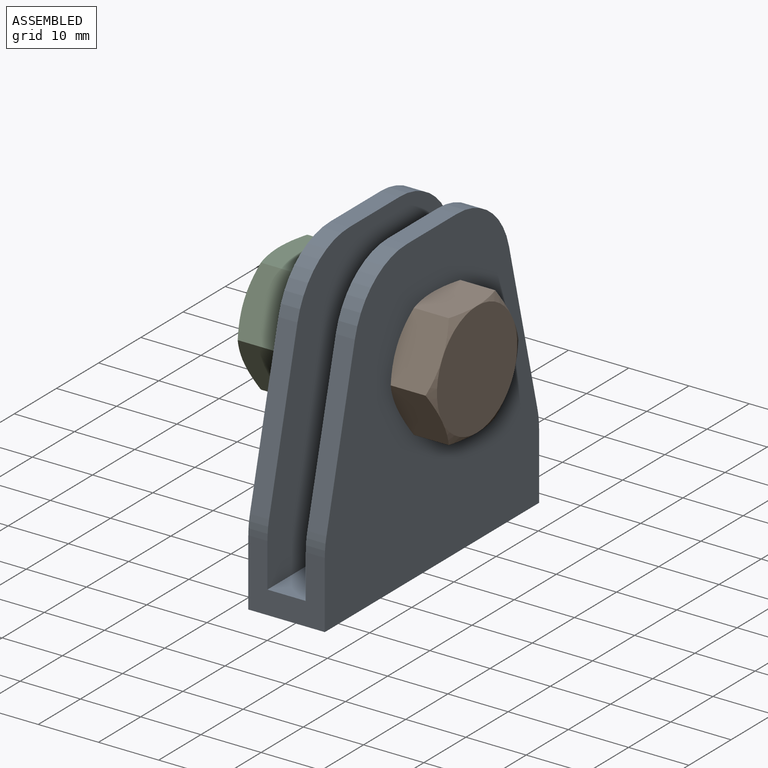
[diagram: assembled view]
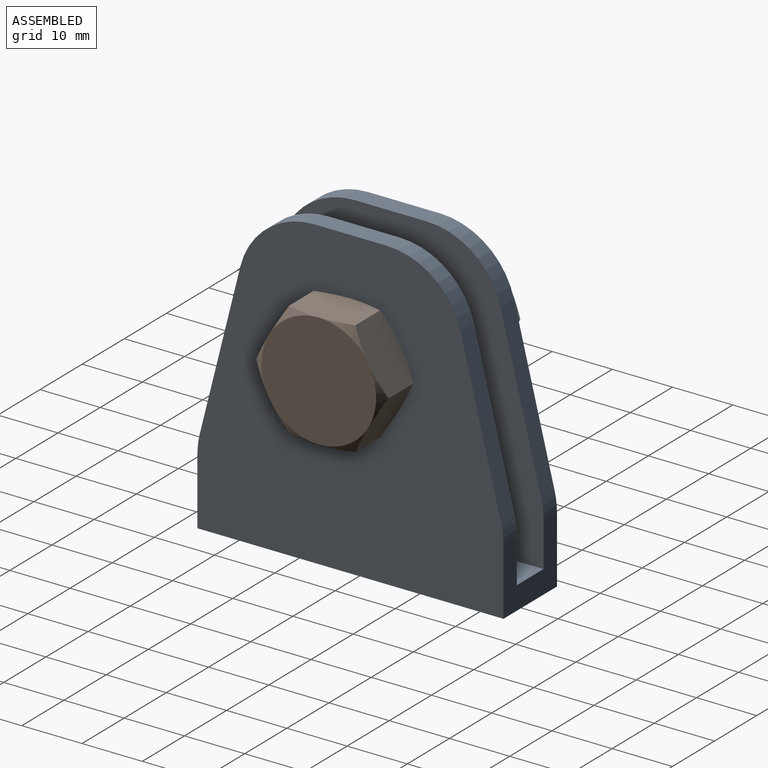
[diagram: assembled view, second angle]
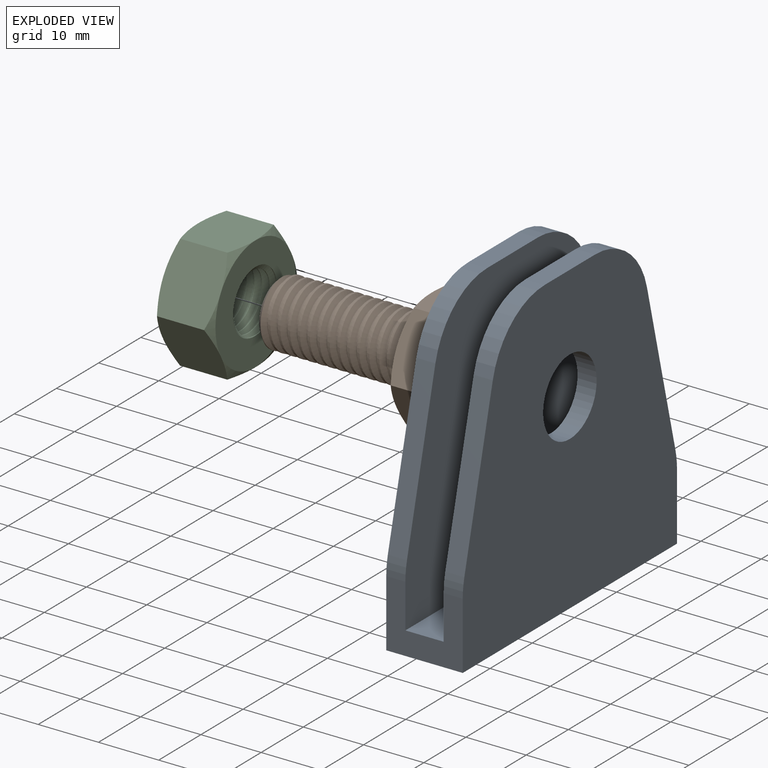
[diagram: exploded view]
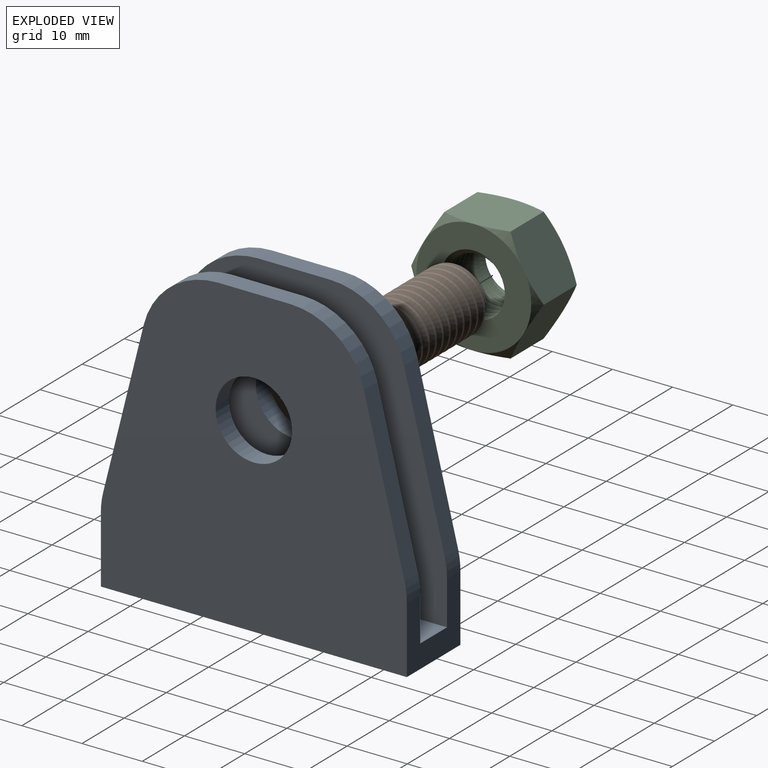
[diagram: exploded view, second angle]
ASSEMBLY  parts=3 mates=2
PART A: 24 faces, bbox 50.8x50.8x12.7 mm
  f0: plane 12.7x11.14mm, normal (0,1,0), area 95.1mm2, adj f6,f11,f12,f13,f14,f15,f16,f20
  f1: plane 26.96x6.74mm, normal (-0.24,0.97,0), area 88.2mm2, adj f11,f14,f20,f21
  f2: plane 11.92x3.18mm, normal (-1,0,0), area 37.8mm2, adj f11,f14,f21,f22
  f3: cylinder r=6.35mm len=12.7mm, axis (0,0,-1), area 126.7mm2, adj f11,f14
  f4: plane 26.96x6.74mm, normal (-0.24,-0.97,0), area 88.2mm2, adj f11,f14,f22,f23
  f5: plane 12.7x11.14mm, normal (0,-1,0), area 95.1mm2, adj f6,f11,f12,f13,f14,f15,f19,f23
  f6: plane 50.8x12.7mm, normal (1,0,0), area 645.2mm2, adj f0,f5,f11,f12
  f7: plane 26.96x6.74mm, normal (-0.24,0.97,0), area 88.2mm2, adj f12,f15,f16,f17
  f8: plane 11.92x3.18mm, normal (-1,0,0), area 37.8mm2, adj f12,f15,f17,f18
  f9: cylinder r=6.35mm len=12.7mm, axis (0,0,-1), area 126.7mm2, adj f12,f15
  f10: plane 26.96x6.74mm, normal (-0.24,-0.97,0), area 88.2mm2, adj f12,f15,f18,f19
  f11: plane 50.8x50.8mm, normal (0,0,1), area 2052.8mm2, adj f0,f1,f2,f3,f4,f5,f6,f20
  f12: plane 50.8x50.8mm, normal (0,0,-1), area 2052.8mm2, adj f0,f5,f6,f7,f8,f9,f10,f16
  f13: plane 50.8x6.35mm, normal (-1,0,0), area 322.6mm2, adj f0,f5,f14,f15
  f14: plane 50.8x46.97mm, normal (0,0,-1), area 1858.1mm2, adj f0,f1,f2,f3,f4,f5,f13,f20
  f15: plane 50.8x46.97mm, normal (0,0,1), area 1858.1mm2, adj f0,f5,f7,f8,f9,f10,f13,f16
  f16: cylinder r=12.7mm len=3.18mm, axis (0,0,-1), area 9.9mm2, adj f0,f7,f12,f15
  f17: cylinder r=12.7mm len=12.32mm, axis (0,0,-1), area 53.5mm2, adj f7,f8,f12,f15
  f18: cylinder r=12.7mm len=12.32mm, axis (0,0,-1), area 53.5mm2, adj f8,f10,f12,f15
  f19: cylinder r=12.7mm len=3.18mm, axis (0,0,-1), area 9.9mm2, adj f5,f10,f12,f15
  f20: cylinder r=12.7mm len=3.18mm, axis (0,0,-1), area 9.9mm2, adj f0,f1,f11,f14
  f21: cylinder r=12.7mm len=12.32mm, axis (0,0,-1), area 53.5mm2, adj f1,f2,f11,f14
  f22: cylinder r=12.7mm len=12.32mm, axis (0,0,-1), area 53.5mm2, adj f2,f4,f11,f14
  f23: cylinder r=12.7mm len=3.18mm, axis (0,0,-1), area 9.9mm2, adj f4,f5,f11,f14
PART B: 28 faces, bbox 22.9x22.9x34.3 mm
  f0: cylinder r=5.44mm len=24.65mm, axis (0,0,1), area 211.7mm2, adj f20,f22,f24,f25,f27
  f1: plane 9.39x9.39mm, normal (0,0,-1), area 69mm2, adj f22,f23,f25,f26
  f2: plane 11.91x8.41mm, normal (-1,0,0), area 76.1mm2, adj f3,f7,f8,f9,f10,f11
  f3: plane 10.43x8.41mm, normal (-0.5,0.87,0), area 76.1mm2, adj f2,f4,f8,f10,f12,f13
  f4: plane 10.43x8.41mm, normal (0.5,0.87,0), area 76.1mm2, adj f3,f5,f12,f13,f14,f15
  f5: plane 11.91x8.41mm, normal (1,0,0), area 76.1mm2, adj f4,f6,f14,f15,f16,f17
  f6: plane 10.43x8.41mm, normal (0.5,-0.87,0), area 76.1mm2, adj f5,f7,f16,f17,f18,f19
  f7: plane 10.43x8.41mm, normal (-0.5,-0.87,0), area 76.1mm2, adj f2,f6,f9,f11,f18,f19
  f8: cone r=13.05mm half-angle=60deg, axis (0,0,1), area 8.9mm2, adj f2,f3,f20
  f9: cone r=13.05mm half-angle=60deg, axis (0,0,1), area 8.9mm2, adj f2,f7,f20
  f10: cone r=13.05mm half-angle=60deg, axis (0,0,-1), area 8.9mm2, adj f2,f3,f21
  f11: cone r=13.05mm half-angle=60deg, axis (0,0,-1), area 8.9mm2, adj f2,f7,f21
  f12: cone r=13.05mm half-angle=60deg, axis (0,0,1), area 8.9mm2, adj f3,f4,f20
  f13: cone r=13.05mm half-angle=60deg, axis (0,0,-1), area 8.9mm2, adj f3,f4,f21
  f14: cone r=13.05mm half-angle=60deg, axis (0,0,1), area 8.9mm2, adj f4,f5,f20
  f15: cone r=13.05mm half-angle=60deg, axis (0,0,-1), area 8.9mm2, adj f4,f5,f21
  f16: cone r=13.05mm half-angle=60deg, axis (0,0,1), area 8.9mm2, adj f5,f6,f20
  f17: cone r=13.05mm half-angle=60deg, axis (0,0,-1), area 8.9mm2, adj f5,f6,f21
  f18: cone r=13.05mm half-angle=60deg, axis (0,0,1), area 8.9mm2, adj f6,f7,f20
  f19: cone r=13.05mm half-angle=60deg, axis (0,0,-1), area 8.9mm2, adj f6,f7,f21
  f20: plane 19.05x19.05mm, normal (0,0,-1), area 192.2mm2, adj f0,f8,f9,f12,f14,f16,f18
  f21: plane 19.05x19.05mm, normal (0,0,1), area 285mm2, adj f10,f11,f13,f15,f17,f19
  f22: cone r=4.69mm half-angle=45deg, axis (0,0,1), area 20.3mm2, adj f0,f1,f23,f25
  f23: plane 0.82x0.75mm, normal (0,1,0), area 0.1mm2, adj f1,f22,f26,f27
  f24: plane 1.23x0.82mm, normal (0,-1,0), area 0.6mm2, adj f0,f25,f26,f27
  f25: bspline ~25.13x12.56mm, area 439.1mm2, adj f0,f1,f22,f24,f26
  f26: cylinder r=4.61mm len=24.92mm, axis (0,0,1), area 121.6mm2, adj f1,f23,f24,f25,f27
  f27: bspline ~25.13x12.56mm, area 450mm2, adj f0,f23,f24,f26
PART C: 25 faces, bbox 22.9x22.9x11 mm
  f0: plane 19.49x19.49mm, normal (0,0,1), area 199.5mm2, adj f2,f5,f6,f8,f10,f12,f14,f22
  f1: plane 19.05x19.05mm, normal (0,0,-1), area 213.1mm2, adj f2,f3,f4,f7,f9,f11,f13
  f2: cylinder r=4.78mm len=9.57mm, axis (0,0,-1), area 65.3mm2, adj f0,f1,f21,f22,f23
  f3: cone r=15.51mm half-angle=60deg, axis (0,0,1), area 8.9mm2, adj f1,f15,f16
  f4: cone r=15.51mm half-angle=60deg, axis (0,0,1), area 8.9mm2, adj f1,f15,f20
  f5: cone r=15.51mm half-angle=60deg, axis (0,0,-1), area 8.9mm2, adj f0,f15,f16
  f6: cone r=15.51mm half-angle=60deg, axis (0,0,-1), area 8.9mm2, adj f0,f15,f20
  f7: cone r=15.51mm half-angle=60deg, axis (0,0,1), area 8.9mm2, adj f1,f16,f17
  f8: cone r=15.51mm half-angle=60deg, axis (0,0,-1), area 8.9mm2, adj f0,f16,f17
  f9: cone r=15.51mm half-angle=60deg, axis (0,0,1), area 8.9mm2, adj f1,f17,f18
  f10: cone r=15.51mm half-angle=60deg, axis (0,0,-1), area 8.9mm2, adj f0,f17,f18
  f11: cone r=15.51mm half-angle=60deg, axis (0,0,1), area 8.9mm2, adj f1,f18,f19
  f12: cone r=15.51mm half-angle=60deg, axis (0,0,-1), area 8.9mm2, adj f0,f18,f19
  f13: cone r=15.51mm half-angle=60deg, axis (0,0,1), area 8.9mm2, adj f1,f19,f20
  f14: cone r=15.51mm half-angle=60deg, axis (0,0,-1), area 8.9mm2, adj f0,f19,f20
  f15: plane 10.43x10.43mm, normal (-0.5,0.87,0), area 98.3mm2, adj f3,f4,f5,f6,f16,f20
  f16: plane 10.43x10.43mm, normal (0.5,0.87,0), area 98.3mm2, adj f3,f5,f7,f8,f15,f17
  f17: plane 11.91x10.44mm, normal (1,0,0), area 98.3mm2, adj f7,f8,f9,f10,f16,f18
  f18: plane 10.43x10.43mm, normal (0.5,-0.87,0), area 98.3mm2, adj f9,f10,f11,f12,f17,f19
  f19: plane 10.43x10.43mm, normal (-0.5,-0.87,0), area 98.3mm2, adj f11,f12,f13,f14,f18,f20
  f20: plane 11.91x10.44mm, normal (-1,0,0), area 98.3mm2, adj f4,f6,f13,f14,f15,f19
  f21: plane 1.15x0.76mm, normal (0,-1,0), area 0.5mm2, adj f2,f22,f23,f24
  f22: bspline ~12.79x11.08mm, area 191.6mm2, adj f0,f2,f21,f24
  f23: bspline ~12.79x11.08mm, area 205.7mm2, adj f0,f2,f21,f24
  f24: cylinder r=5.54mm len=11.08mm, axis (0,0,-1), area 90.5mm2, adj f0,f21,f22,f23
PLACE A rot(axis=(0,1,0),90deg) t=(0,0,0)mm fixed
PLACE B rot(axis=(0,1,0),90deg) t=(6.35,0,31.75)mm fixed
PLACE C rot(axis=(0,1,0),90deg) t=(-19.05,0,31.75)mm
MATE fastened B.f8 <-> A.f3  axis (-1,0,0) through (6.35,0,31.75)mm
MATE cylindrical B.f0 <-> C.f3  axis (-1,0,0) through (-19.05,0,31.75)mm
